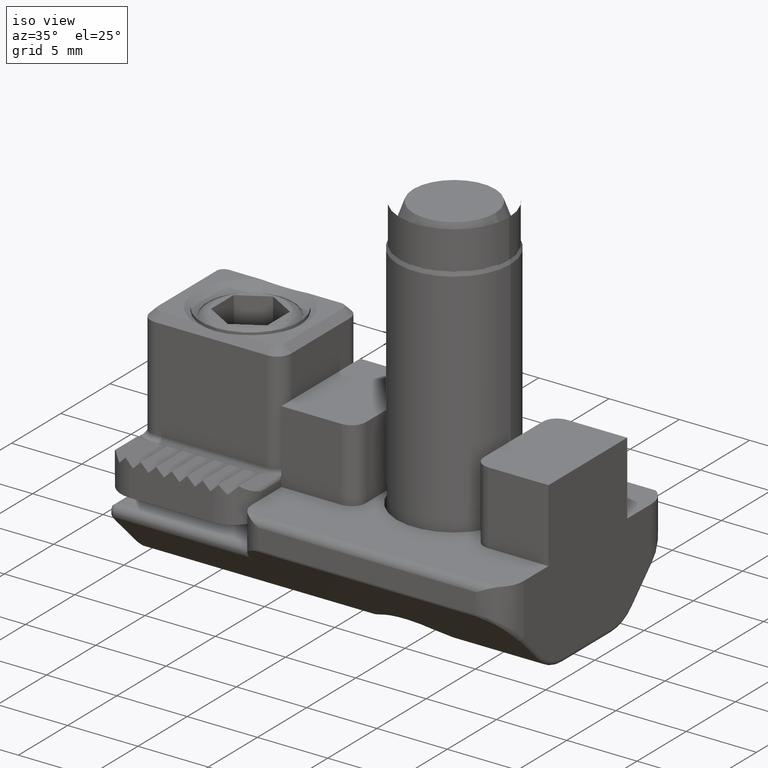
[diagram: clean part render]
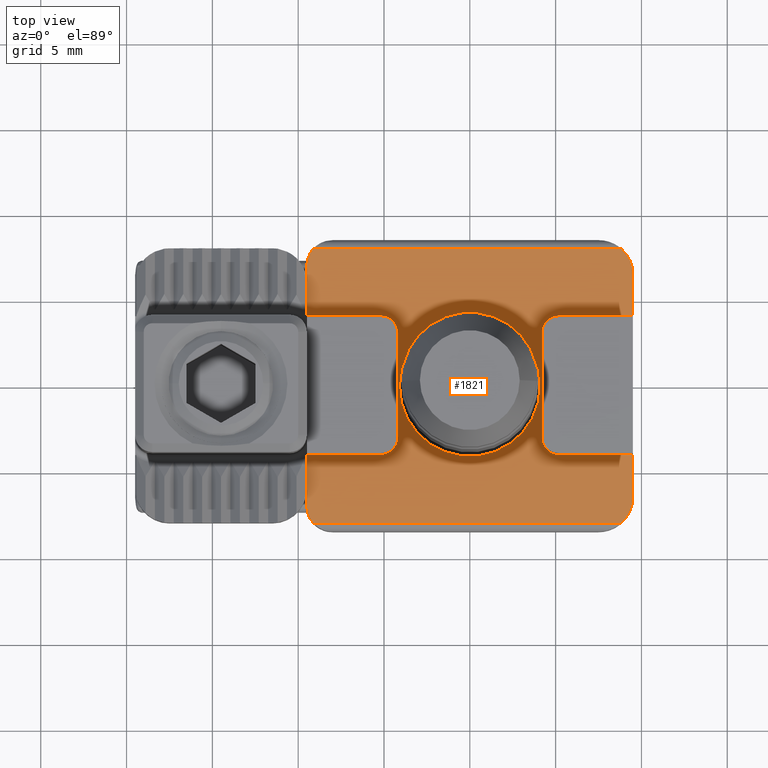
[diagram: tour spotlight — one face highlighted and labeled with its STEP entity id]
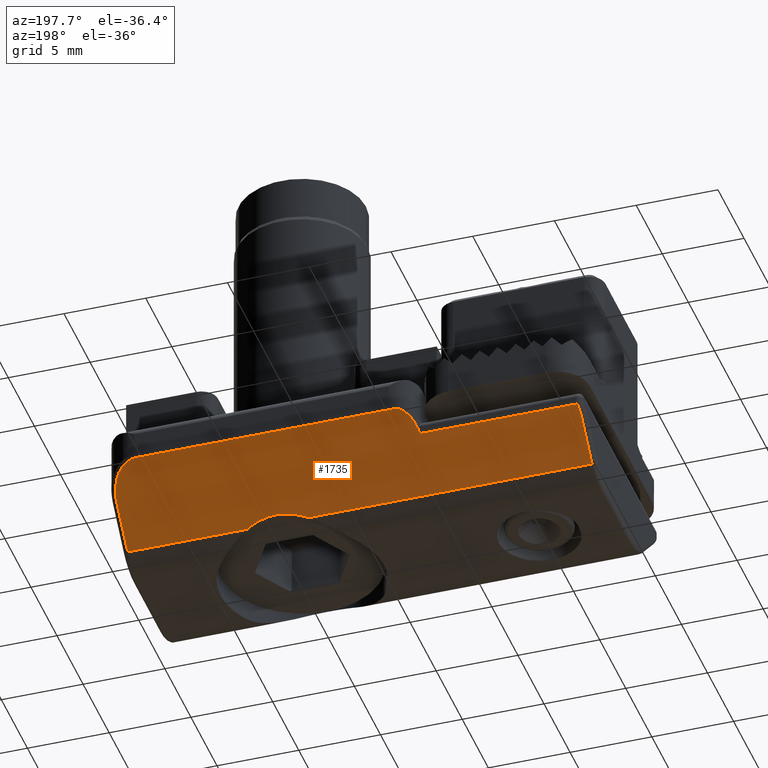
[diagram: tour spotlight — one face highlighted and labeled with its STEP entity id]
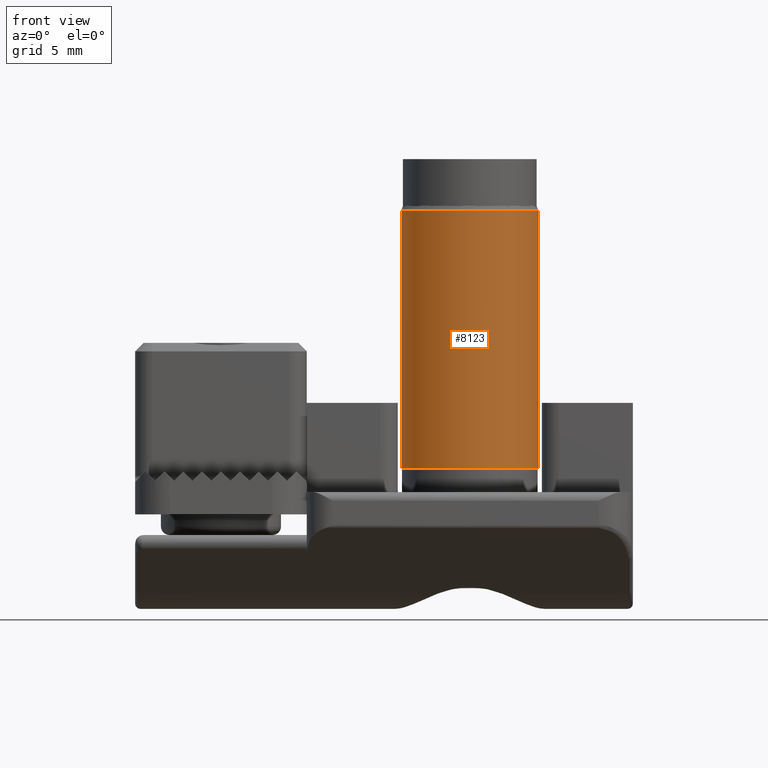
[diagram: tour spotlight — one face highlighted and labeled with its STEP entity id]
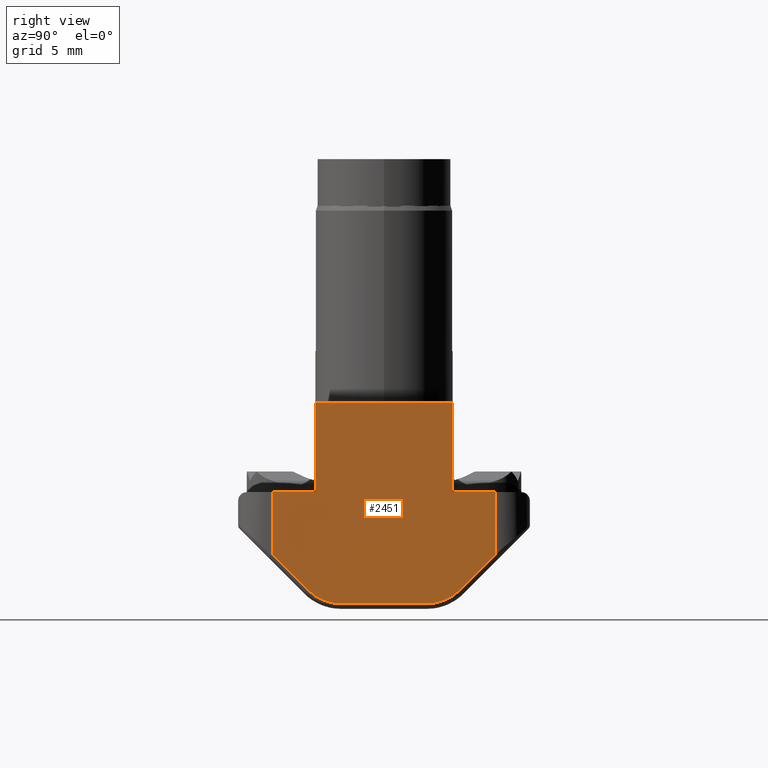
[diagram: tour spotlight — one face highlighted and labeled with its STEP entity id]
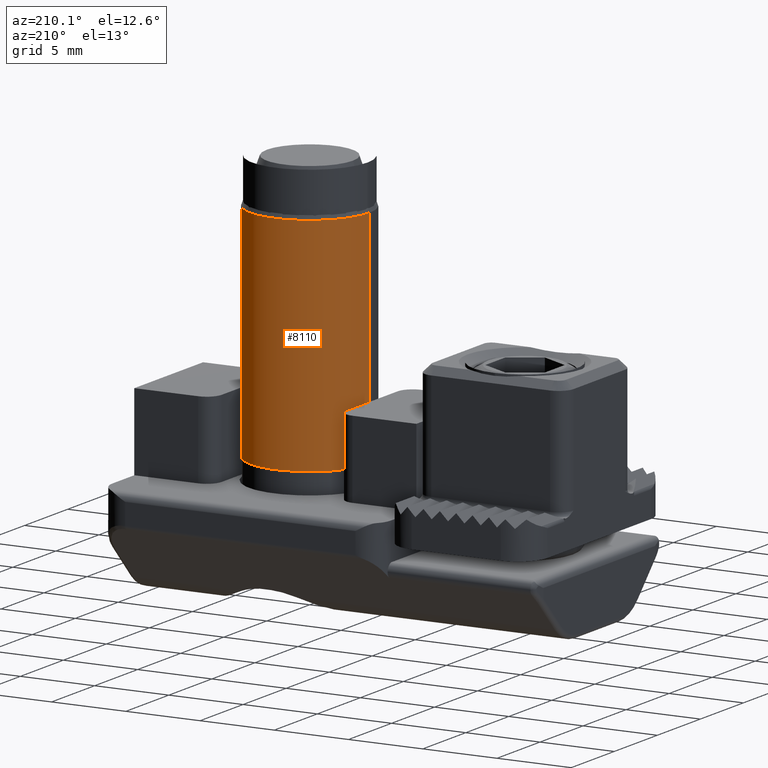
[diagram: tour spotlight — one face highlighted and labeled with its STEP entity id]
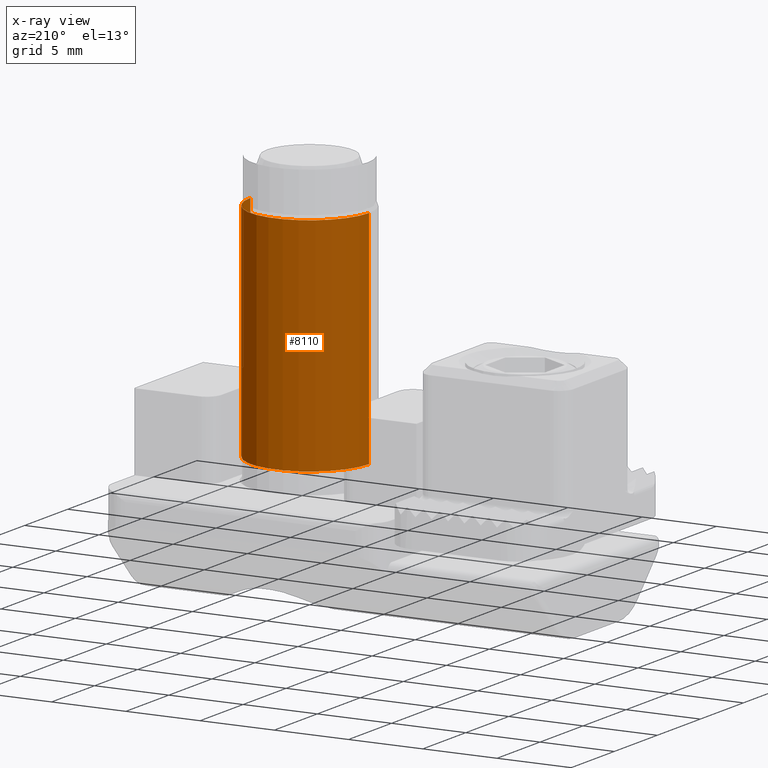
[diagram: x-ray of the same camera — body ghosted, this tour face saturated]
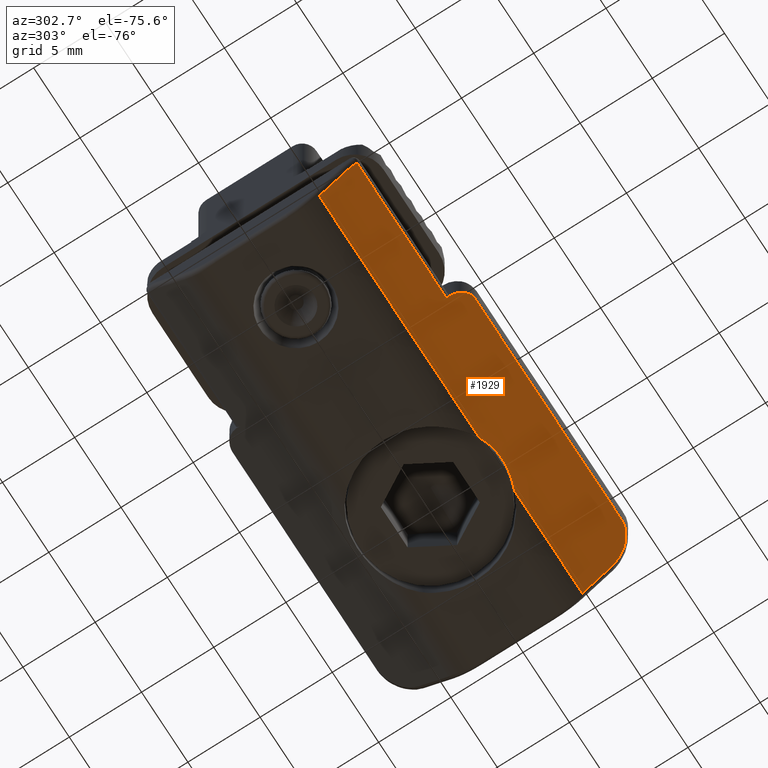
[diagram: tour spotlight — one face highlighted and labeled with its STEP entity id]
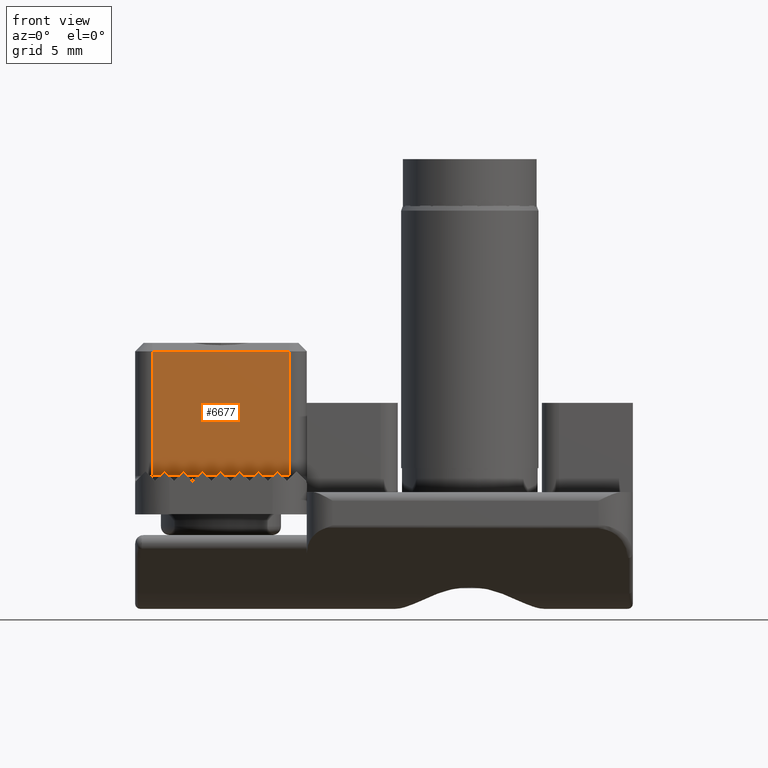
[diagram: tour spotlight — one face highlighted and labeled with its STEP entity id]
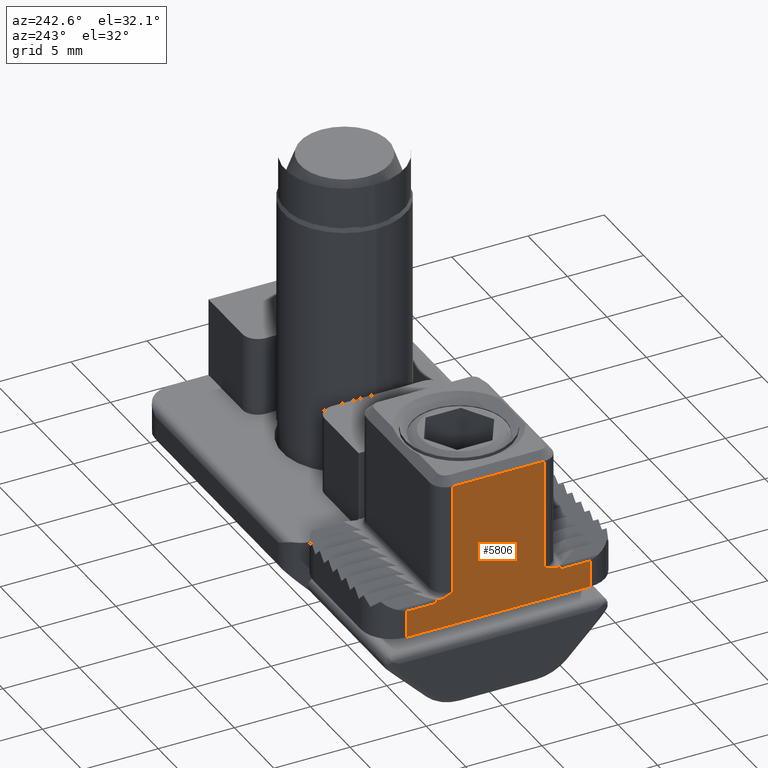
[diagram: tour spotlight — one face highlighted and labeled with its STEP entity id]
A machine part: a face-by-face anatomy tour. The part has 242 B-rep faces; the first image is the clean iso view, then the 8 largest visible faces are spotlighted one at a time (largest first), each with its STEP entity span.

Face 1 — top view, entity #1821. In plain terms, the highlighted planar face has unit normal (0, 0, 1).
Definition (entity closure, byte-faithful):
#170=CARTESIAN_POINT('',(0.E0,0.E0,-5.2E0));
#171=DIRECTION('',(0.E0,0.E0,-1.E0));
#172=DIRECTION('',(1.E0,0.E0,0.E0));
#173=AXIS2_PLACEMENT_3D('',#170,#171,#172);
#178=CARTESIAN_POINT('',(0.E0,0.E0,-5.2E0));
#179=DIRECTION('',(0.E0,0.E0,-1.E0));
#180=DIRECTION('',(-1.E0,0.E0,0.E0));
#181=AXIS2_PLACEMENT_3D('',#178,#179,#180);
#186=CARTESIAN_POINT('',(-8.E0,7.E0,-5.2E0));
#187=DIRECTION('',(0.E0,0.E0,1.E0));
#188=DIRECTION('',(-7.453559924999E-1,6.666666666667E-1,0.E0));
#189=AXIS2_PLACEMENT_3D('',#186,#187,#188);
#194=DIRECTION('',(-1.E0,0.E0,0.E0));
#195=VECTOR('',#194,1.794090964428E1);
#196=CARTESIAN_POINT('',(8.822875655532E0,8.E0,-5.2E0));
#197=LINE('',#196,#195);
#201=CARTESIAN_POINT('',(7.5E0,6.5E0,-5.2E0));
#202=DIRECTION('',(0.E0,0.E0,1.E0));
#203=DIRECTION('',(1.E0,0.E0,0.E0));
#204=AXIS2_PLACEMENT_3D('',#201,#202,#203);
#209=DIRECTION('',(0.E0,-1.E0,0.E0));
#210=VECTOR('',#209,2.5E0);
#211=CARTESIAN_POINT('',(9.5E0,6.5E0,-5.2E0));
#212=LINE('',#211,#210);
#216=DIRECTION('',(0.E0,1.E0,0.E0));
#217=VECTOR('',#216,6.E0);
#218=CARTESIAN_POINT('',(4.2E0,-3.E0,-5.2E0));
#219=LINE('',#218,#217);
#223=DIRECTION('',(1.E0,0.E0,0.E0));
#224=VECTOR('',#223,4.3E0);
#225=CARTESIAN_POINT('',(5.2E0,-4.E0,-5.2E0));
#226=LINE('',#225,#224);
#230=DIRECTION('',(0.E0,-1.E0,0.E0));
#231=VECTOR('',#230,2.5E0);
#232=CARTESIAN_POINT('',(9.5E0,-4.E0,-5.2E0));
#233=LINE('',#232,#231);
#237=CARTESIAN_POINT('',(7.5E0,-6.5E0,-5.2E0));
#238=DIRECTION('',(0.E0,0.E0,1.E0));
#239=DIRECTION('',(6.614378277661E-1,-7.5E-1,0.E0));
#240=AXIS2_PLACEMENT_3D('',#237,#238,#239);
#245=DIRECTION('',(-1.E0,0.E0,0.E0));
#246=VECTOR('',#245,1.794090964428E1);
#247=CARTESIAN_POINT('',(8.822875655532E0,-8.E0,-5.2E0));
#248=LINE('',#247,#246);
#252=CARTESIAN_POINT('',(-8.E0,-7.E0,-5.2E0));
#253=DIRECTION('',(0.E0,0.E0,1.E0));
#254=DIRECTION('',(-1.E0,0.E0,0.E0));
#255=AXIS2_PLACEMENT_3D('',#252,#253,#254);
#260=DIRECTION('',(0.E0,-1.E0,0.E0));
#261=VECTOR('',#260,3.E0);
#262=CARTESIAN_POINT('',(-9.5E0,-4.E0,-5.2E0));
#263=LINE('',#262,#261);
#267=DIRECTION('',(1.E0,0.E0,0.E0));
#268=VECTOR('',#267,4.3E0);
#269=CARTESIAN_POINT('',(-9.5E0,-4.E0,-5.2E0));
#270=LINE('',#269,#268);
#274=DIRECTION('',(0.E0,-1.E0,0.E0));
#275=VECTOR('',#274,6.E0);
#276=CARTESIAN_POINT('',(-4.2E0,3.E0,-5.2E0));
#277=LINE('',#276,#275);
#281=DIRECTION('',(0.E0,-1.E0,0.E0));
#282=VECTOR('',#281,3.E0);
#283=CARTESIAN_POINT('',(-9.5E0,7.E0,-5.2E0));
#284=LINE('',#283,#282);
#761=DIRECTION('',(1.E0,0.E0,0.E0));
#762=VECTOR('',#761,4.3E0);
#763=CARTESIAN_POINT('',(-9.5E0,4.E0,-5.2E0));
#764=LINE('',#763,#762);
#775=DIRECTION('',(1.E0,0.E0,0.E0));
#776=VECTOR('',#775,4.3E0);
#777=CARTESIAN_POINT('',(5.2E0,4.E0,-5.2E0));
#778=LINE('',#777,#776);
#789=CARTESIAN_POINT('',(-5.2E0,3.E0,-5.2E0));
#790=DIRECTION('',(0.E0,0.E0,-1.E0));
#791=DIRECTION('',(0.E0,1.E0,0.E0));
#792=AXIS2_PLACEMENT_3D('',#789,#790,#791);
#811=CARTESIAN_POINT('',(-5.2E0,-3.E0,-5.2E0));
#812=DIRECTION('',(0.E0,0.E0,-1.E0));
#813=DIRECTION('',(1.E0,0.E0,0.E0));
#814=AXIS2_PLACEMENT_3D('',#811,#812,#813);
#935=CARTESIAN_POINT('',(5.2E0,3.E0,-5.2E0));
#936=DIRECTION('',(0.E0,0.E0,-1.E0));
#937=DIRECTION('',(-1.E0,0.E0,0.E0));
#938=AXIS2_PLACEMENT_3D('',#935,#936,#937);
#957=CARTESIAN_POINT('',(5.2E0,-3.E0,-5.2E0));
#958=DIRECTION('',(0.E0,0.E0,-1.E0));
#959=DIRECTION('',(0.E0,-1.E0,0.E0));
#960=AXIS2_PLACEMENT_3D('',#957,#958,#959);
#1482=CARTESIAN_POINT('',(9.5E0,-4.E0,-5.2E0));
#1483=VERTEX_POINT('',#1482);
#1484=CARTESIAN_POINT('',(-9.5E0,-4.E0,-5.2E0));
#1485=VERTEX_POINT('',#1484);
#1486=CARTESIAN_POINT('',(9.5E0,4.E0,-5.2E0));
#1487=VERTEX_POINT('',#1486);
#1488=CARTESIAN_POINT('',(-9.5E0,4.E0,-5.2E0));
#1489=VERTEX_POINT('',#1488);
#1498=CARTESIAN_POINT('',(4.1E0,0.E0,-5.2E0));
#1499=CARTESIAN_POINT('',(-4.1E0,0.E0,-5.2E0));
#1500=VERTEX_POINT('',#1498);
#1501=VERTEX_POINT('',#1499);
#1528=CARTESIAN_POINT('',(-4.2E0,-3.E0,-5.2E0));
#1530=VERTEX_POINT('',#1528);
#1532=CARTESIAN_POINT('',(-5.2E0,-4.E0,-5.2E0));
#1534=VERTEX_POINT('',#1532);
#1537=CARTESIAN_POINT('',(-4.2E0,3.E0,-5.2E0));
#1539=VERTEX_POINT('',#1537);
#1542=CARTESIAN_POINT('',(-5.2E0,4.E0,-5.2E0));
#1543=VERTEX_POINT('',#1542);
#1544=CARTESIAN_POINT('',(4.2E0,3.E0,-5.2E0));
#1546=VERTEX_POINT('',#1544);
#1548=CARTESIAN_POINT('',(5.2E0,4.E0,-5.2E0));
#1550=VERTEX_POINT('',#1548);
#1553=CARTESIAN_POINT('',(4.2E0,-3.E0,-5.2E0));
#1555=VERTEX_POINT('',#1553);
#1558=CARTESIAN_POINT('',(5.2E0,-4.E0,-5.2E0));
#1559=VERTEX_POINT('',#1558);
#1560=CARTESIAN_POINT('',(9.5E0,6.5E0,-5.2E0));
#1561=CARTESIAN_POINT('',(8.822875655532E0,8.E0,-5.2E0));
#1562=VERTEX_POINT('',#1560);
#1563=VERTEX_POINT('',#1561);
#1564=CARTESIAN_POINT('',(8.822875655532E0,-8.E0,-5.2E0));
#1565=CARTESIAN_POINT('',(9.5E0,-6.5E0,-5.2E0));
#1566=VERTEX_POINT('',#1564);
#1567=VERTEX_POINT('',#1565);
#1638=CARTESIAN_POINT('',(-9.118033988750E0,8.E0,-5.2E0));
#1639=CARTESIAN_POINT('',(-9.5E0,7.E0,-5.2E0));
#1640=VERTEX_POINT('',#1638);
#1641=VERTEX_POINT('',#1639);
#1642=CARTESIAN_POINT('',(-9.5E0,-7.E0,-5.2E0));
#1643=CARTESIAN_POINT('',(-9.118033988750E0,-8.E0,-5.2E0));
#1644=VERTEX_POINT('',#1642);
#1645=VERTEX_POINT('',#1643);
#1769=CARTESIAN_POINT('',(-1.95E1,-4.E0,-5.2E0));
#1770=DIRECTION('',(0.E0,0.E0,1.E0));
#1771=DIRECTION('',(0.E0,-1.E0,0.E0));
#1772=AXIS2_PLACEMENT_3D('',#1769,#1770,#1771);
#1773=PLANE('',#1772);
#1774=ORIENTED_EDGE('',*,*,#1754,.F.);
#1776=ORIENTED_EDGE('',*,*,#1775,.F.);
#1778=ORIENTED_EDGE('',*,*,#1777,.F.);
#1780=ORIENTED_EDGE('',*,*,#1779,.T.);
#1782=ORIENTED_EDGE('',*,*,#1781,.F.);
#1784=ORIENTED_EDGE('',*,*,#1783,.F.);
#1786=ORIENTED_EDGE('',*,*,#1785,.F.);
#1788=ORIENTED_EDGE('',*,*,#1787,.F.);
#1790=ORIENTED_EDGE('',*,*,#1789,.T.);
#1792=ORIENTED_EDGE('',*,*,#1791,.T.);
#1794=ORIENTED_EDGE('',*,*,#1793,.F.);
#1796=ORIENTED_EDGE('',*,*,#1795,.T.);
#1798=ORIENTED_EDGE('',*,*,#1797,.F.);
#1800=ORIENTED_EDGE('',*,*,#1799,.F.);
#1802=ORIENTED_EDGE('',*,*,#1801,.T.);
#1804=ORIENTED_EDGE('',*,*,#1803,.F.);
#1806=ORIENTED_EDGE('',*,*,#1805,.F.);
#1808=ORIENTED_EDGE('',*,*,#1807,.F.);
#1810=ORIENTED_EDGE('',*,*,#1809,.F.);
#1812=ORIENTED_EDGE('',*,*,#1811,.F.);
#1813=EDGE_LOOP('',(#1774,#1776,#1778,#1780,#1782,#1784,#1786,#1788,#1790,#1792,
#1794,#1796,#1798,#1800,#1802,#1804,#1806,#1808,#1810,#1812));
#1814=FACE_OUTER_BOUND('',#1813,.F.);
#1816=ORIENTED_EDGE('',*,*,#1815,.F.);
#1818=ORIENTED_EDGE('',*,*,#1817,.F.);
#1819=EDGE_LOOP('',(#1816,#1818));
#1820=FACE_BOUND('',#1819,.F.);
#1821=ADVANCED_FACE('',(#1814,#1820),#1773,.T.);
#174=CIRCLE('',#173,4.1E0);
#182=CIRCLE('',#181,4.1E0);
#190=CIRCLE('',#189,1.5E0);
#205=CIRCLE('',#204,2.E0);
#241=CIRCLE('',#240,2.E0);
#256=CIRCLE('',#255,1.5E0);
#793=CIRCLE('',#792,1.E0);
#815=CIRCLE('',#814,1.E0);
#939=CIRCLE('',#938,1.E0);
#961=CIRCLE('',#960,1.E0);
#1754=EDGE_CURVE('',#1640,#1641,#190,.T.);
#1775=EDGE_CURVE('',#1563,#1640,#197,.T.);
#1777=EDGE_CURVE('',#1562,#1563,#205,.T.);
#1779=EDGE_CURVE('',#1562,#1487,#212,.T.);
#1781=EDGE_CURVE('',#1550,#1487,#778,.T.);
#1783=EDGE_CURVE('',#1546,#1550,#939,.T.);
#1785=EDGE_CURVE('',#1555,#1546,#219,.T.);
#1787=EDGE_CURVE('',#1559,#1555,#961,.T.);
#1789=EDGE_CURVE('',#1559,#1483,#226,.T.);
#1791=EDGE_CURVE('',#1483,#1567,#233,.T.);
#1793=EDGE_CURVE('',#1566,#1567,#241,.T.);
#1795=EDGE_CURVE('',#1566,#1645,#248,.T.);
#1797=EDGE_CURVE('',#1644,#1645,#256,.T.);
#1799=EDGE_CURVE('',#1485,#1644,#263,.T.);
#1801=EDGE_CURVE('',#1485,#1534,#270,.T.);
#1803=EDGE_CURVE('',#1530,#1534,#815,.T.);
#1805=EDGE_CURVE('',#1539,#1530,#277,.T.);
#1807=EDGE_CURVE('',#1543,#1539,#793,.T.);
#1809=EDGE_CURVE('',#1489,#1543,#764,.T.);
#1811=EDGE_CURVE('',#1641,#1489,#284,.T.);
#1815=EDGE_CURVE('',#1500,#1501,#174,.T.);
#1817=EDGE_CURVE('',#1501,#1500,#182,.T.);

Face 2 — auxiliary view, entity #1735. In plain terms, the highlighted planar face has unit normal (0, 0.7071, -0.7071).
Definition (entity closure, byte-faithful):
#71=DIRECTION('',(0.E0,-7.071067811865E-1,-7.071067811865E-1));
#72=VECTOR('',#71,2.778174593052E-1);
#73=CARTESIAN_POINT('',(-9.5E0,7.196446609407E0,-8.553553390593E0));
#74=LINE('',#73,#72);
#78=DIRECTION('',(1.E0,1.811735936381E-7,-1.811781957785E-7));
#79=VECTOR('',#78,9.629551899268E0);
#80=CARTESIAN_POINT('',(-1.912955189927E1,7.196444864786E0,-8.553551645928E0));
#81=LINE('',#80,#79);
#85=CARTESIAN_POINT('',(-1.92E1,6.712132034356E0,-9.037867965644E0));
#86=CARTESIAN_POINT('',(-1.920000074395E1,6.795061336289E0,-8.954938663711E0));
#87=CARTESIAN_POINT('',(-1.918792567127E1,6.958711115339E0,-8.791290629304E0));
#88=CARTESIAN_POINT('',(-1.915289113032E1,7.117934628538E0,-8.632061882176E0));
#89=CARTESIAN_POINT('',(-1.912955189927E1,7.196444864786E0,-8.553551645928E0));
#94=DIRECTION('',(0.E0,7.071067811865E-1,7.071067811866E-1));
#95=VECTOR('',#94,2.946446609359E0);
#96=CARTESIAN_POINT('',(-1.92E1,4.628679656474E0,-1.112132034353E1));
#97=LINE('',#96,#95);
#101=DIRECTION('',(1.E0,-1.965788090853E-12,-1.965890716177E-12));
#102=VECTOR('',#101,1.730914711359E1);
#103=CARTESIAN_POINT('',(-1.92E1,4.628679656474E0,-1.112132034353E1));
#104=LINE('',#103,#102);
#108=CARTESIAN_POINT('',(-1.890852886413E0,4.628679656440E0,-1.112132034356E1));
#109=CARTESIAN_POINT('',(-1.260568558480E0,4.886155876268E0,-1.086384412373E1));
#110=CARTESIAN_POINT('',(8.919869687318E-8,5.113844145544E0,-1.063615585446E1));
#111=CARTESIAN_POINT('',(1.260568723903E0,4.886155832644E0,-1.086384416736E1));
#112=CARTESIAN_POINT('',(1.890853037162E0,4.628679594858E0,-1.112132040514E1));
#117=DIRECTION('',(1.E0,7.636365123829E-9,7.618012559952E-9));
#118=VECTOR('',#117,7.309146973910E0);
#119=CARTESIAN_POINT('',(1.890853026090E0,4.628679600658E0,-1.112132039921E1));
#120=LINE('',#119,#118);
#124=DIRECTION('',(0.E0,-7.071067811865E-1,-7.071067811866E-1));
#125=VECTOR('',#124,2.946446609360E0);
#126=CARTESIAN_POINT('',(9.2E0,6.712132034356E0,-9.037867965644E0));
#127=LINE('',#126,#125);
#131=CARTESIAN_POINT('',(7.5E0,8.412132034097E0,-7.337867965385E0));
#132=CARTESIAN_POINT('',(7.591611158539E0,8.412109254161E0,-7.337890745322E0));
#133=CARTESIAN_POINT('',(7.775509138872E0,8.397609251905E0,-7.352390748335E0));
#134=CARTESIAN_POINT('',(8.057548696581E0,8.327115088315E0,-7.422884911621E0));
#135=CARTESIAN_POINT('',(8.333387832280E0,8.204680432255E0,-7.545319567762E0));
#136=CARTESIAN_POINT('',(8.600366848986E0,8.022216935236E0,-7.727783064760E0));
#137=CARTESIAN_POINT('',(8.840123038209E0,7.777316103971E0,-7.972683896031E0));
#138=CARTESIAN_POINT('',(9.035683492043E0,7.473399406999E0,-8.276600593001E0));
#139=CARTESIAN_POINT('',(9.169387522971E0,7.104808752595E0,-8.645191247405E0));
#140=CARTESIAN_POINT('',(9.200002960671E0,6.846788301077E0,-8.903211698923E0));
#141=CARTESIAN_POINT('',(9.2E0,6.712132034356E0,-9.037867965644E0));
#146=DIRECTION('',(1.E0,-1.617170312827E-11,1.616887309409E-11));
#147=VECTOR('',#146,1.600584890782E1);
#148=CARTESIAN_POINT('',(-8.505848907823E0,8.412132034356E0,-7.337867965644E0));
#149=LINE('',#148,#147);
#153=CARTESIAN_POINT('',(-8.505848907823E0,8.412132034356E0,-7.337867965644E0));
#154=CARTESIAN_POINT('',(-8.699713752559E0,8.342686460154E0,-7.407313539846E0));
#155=CARTESIAN_POINT('',(-8.986851407908E0,8.160093170149E0,-7.589906829851E0));
#156=CARTESIAN_POINT('',(-9.372365870277E0,7.712899566484E0,-8.037100433516E0));
#157=CARTESIAN_POINT('',(-9.5E0,7.307340051335E0,-8.442659948665E0));
#158=CARTESIAN_POINT('',(-9.5E0,7.E0,-8.75E0));
#718=CARTESIAN_POINT('',(-1.912955189927E1,7.196444864786E0,-8.553551645928E0));
#1162=CARTESIAN_POINT('',(-1.890852886413E0,4.628679656440E0,
-1.112132034356E1));
#1193=CARTESIAN_POINT('',(1.890853026090E0,4.628679600658E0,-1.112132039921E1));
#1514=VERTEX_POINT('',#1193);
#1515=VERTEX_POINT('',#1162);
#1584=VERTEX_POINT('',#718);
#1586=VERTEX_POINT('',#85);
#1588=CARTESIAN_POINT('',(-1.92E1,4.628679656474E0,-1.112132034353E1));
#1589=VERTEX_POINT('',#1588);
#1628=CARTESIAN_POINT('',(9.2E0,4.628679656440E0,-1.112132034356E1));
#1629=VERTEX_POINT('',#1628);
#1632=CARTESIAN_POINT('',(9.2E0,6.712132034356E0,-9.037867965644E0));
#1633=VERTEX_POINT('',#1632);
#1636=VERTEX_POINT('',#131);
#1655=CARTESIAN_POINT('',(-9.5E0,7.196446609407E0,-8.553553390593E0));
#1656=CARTESIAN_POINT('',(-9.5E0,7.E0,-8.75E0));
#1657=VERTEX_POINT('',#1655);
#1658=VERTEX_POINT('',#1656);
#1659=VERTEX_POINT('',#153);
#1707=CARTESIAN_POINT('',(-1.95E1,4.628679656440E0,-1.112132034356E1));
#1708=DIRECTION('',(0.E0,7.071067811865E-1,-7.071067811865E-1));
#1709=DIRECTION('',(0.E0,7.071067811865E-1,7.071067811865E-1));
#1710=AXIS2_PLACEMENT_3D('',#1707,#1708,#1709);
#1711=PLANE('',#1710);
#1713=ORIENTED_EDGE('',*,*,#1712,.F.);
#1715=ORIENTED_EDGE('',*,*,#1714,.F.);
#1717=ORIENTED_EDGE('',*,*,#1716,.F.);
#1718=ORIENTED_EDGE('',*,*,#1697,.F.);
#1720=ORIENTED_EDGE('',*,*,#1719,.T.);
#1722=ORIENTED_EDGE('',*,*,#1721,.T.);
#1724=ORIENTED_EDGE('',*,*,#1723,.T.);
#1726=ORIENTED_EDGE('',*,*,#1725,.F.);
#1728=ORIENTED_EDGE('',*,*,#1727,.F.);
#1730=ORIENTED_EDGE('',*,*,#1729,.F.);
#1732=ORIENTED_EDGE('',*,*,#1731,.T.);
#1733=EDGE_LOOP('',(#1713,#1715,#1717,#1718,#1720,#1722,#1724,#1726,#1728,#1730,
#1732));
#1734=FACE_OUTER_BOUND('',#1733,.F.);
#1735=ADVANCED_FACE('',(#1734),#1711,.T.);
#90=B_SPLINE_CURVE_WITH_KNOTS('',3,(#85,#86,#87,#88,#89),.UNSPECIFIED.,.F.,.F.,(
4,1,4),(0.E0,5.E-1,1.E0),.UNSPECIFIED.);
#113=B_SPLINE_CURVE_WITH_KNOTS('',3,(#108,#109,#110,#111,#112),.UNSPECIFIED.,
.F.,.F.,(4,1,4),(0.E0,5.E-1,1.E0),.UNSPECIFIED.);
#142=B_SPLINE_CURVE_WITH_KNOTS('',3,(#131,#132,#133,#134,#135,#136,#137,#138,
#139,#140,#141),.UNSPECIFIED.,.F.,.F.,(4,1,1,1,1,1,1,1,4),(0.E0,1.25E-1,2.5E-1,
3.75E-1,5.E-1,6.25E-1,7.5E-1,8.75E-1,1.E0),.UNSPECIFIED.);
#159=B_SPLINE_CURVE_WITH_KNOTS('',3,(#153,#154,#155,#156,#157,#158),
.UNSPECIFIED.,.F.,.F.,(4,1,1,4),(0.E0,2.5E-1,5.E-1,1.E0),.UNSPECIFIED.);
#1697=EDGE_CURVE('',#1589,#1586,#97,.T.);
#1712=EDGE_CURVE('',#1657,#1658,#74,.T.);
#1714=EDGE_CURVE('',#1584,#1657,#81,.T.);
#1716=EDGE_CURVE('',#1586,#1584,#90,.T.);
#1719=EDGE_CURVE('',#1589,#1515,#104,.T.);
#1721=EDGE_CURVE('',#1515,#1514,#113,.T.);
#1723=EDGE_CURVE('',#1514,#1629,#120,.T.);
#1725=EDGE_CURVE('',#1633,#1629,#127,.T.);
#1727=EDGE_CURVE('',#1636,#1633,#142,.T.);
#1729=EDGE_CURVE('',#1659,#1636,#149,.T.);
#1731=EDGE_CURVE('',#1659,#1658,#159,.T.);

Face 3 — front view, entity #8123. In plain terms, the highlighted cylindrical surface (partial cylindrical patch) has radius 4 mm, axis along (0, 0, 1).
Definition (entity closure, byte-faithful):
#7682=DIRECTION('',(0.E0,0.E0,-1.E0));
#7683=VECTOR('',#7682,1.5E1);
#7684=CARTESIAN_POINT('',(4.E0,0.E0,-3.E0));
#7685=LINE('',#7684,#7683);
#7689=DIRECTION('',(0.E0,0.E0,-1.E0));
#7690=VECTOR('',#7689,1.5E1);
#7691=CARTESIAN_POINT('',(-4.E0,0.E0,-3.E0));
#7692=LINE('',#7691,#7690);
#7696=CARTESIAN_POINT('',(0.E0,0.E0,-3.E0));
#7697=DIRECTION('',(0.E0,0.E0,-1.E0));
#7698=DIRECTION('',(1.E0,0.E0,0.E0));
#7699=AXIS2_PLACEMENT_3D('',#7696,#7697,#7698);
#7712=CARTESIAN_POINT('',(0.E0,0.E0,-1.8E1));
#7713=DIRECTION('',(0.E0,0.E0,-1.E0));
#7714=DIRECTION('',(1.E0,0.E0,0.E0));
#7715=AXIS2_PLACEMENT_3D('',#7712,#7713,#7714);
#8009=CARTESIAN_POINT('',(4.E0,0.E0,-3.E0));
#8011=VERTEX_POINT('',#8009);
#8012=CARTESIAN_POINT('',(4.E0,0.E0,-1.8E1));
#8013=VERTEX_POINT('',#8012);
#8019=CARTESIAN_POINT('',(-4.E0,0.E0,-3.E0));
#8021=VERTEX_POINT('',#8019);
#8022=CARTESIAN_POINT('',(-4.E0,0.E0,-1.8E1));
#8023=VERTEX_POINT('',#8022);
#8111=CARTESIAN_POINT('',(0.E0,0.E0,-2.625E1));
#8112=DIRECTION('',(0.E0,0.E0,1.E0));
#8113=DIRECTION('',(-1.E0,0.E0,0.E0));
#8114=AXIS2_PLACEMENT_3D('',#8111,#8112,#8113);
#8115=CYLINDRICAL_SURFACE('',#8114,4.E0);
#8116=ORIENTED_EDGE('',*,*,#8101,.T.);
#8118=ORIENTED_EDGE('',*,*,#8117,.T.);
#8119=ORIENTED_EDGE('',*,*,#8104,.F.);
#8120=ORIENTED_EDGE('',*,*,#8075,.F.);
#8121=EDGE_LOOP('',(#8116,#8118,#8119,#8120));
#8122=FACE_OUTER_BOUND('',#8121,.F.);
#8123=ADVANCED_FACE('',(#8122),#8115,.T.);
#7700=CIRCLE('',#7699,4.E0);
#7716=CIRCLE('',#7715,4.E0);
#8075=EDGE_CURVE('',#8011,#8021,#7700,.T.);
#8101=EDGE_CURVE('',#8011,#8013,#7685,.T.);
#8104=EDGE_CURVE('',#8021,#8023,#7692,.T.);
#8117=EDGE_CURVE('',#8013,#8023,#7716,.T.);

Face 4 — right view, entity #2451. In plain terms, the highlighted planar face has unit normal (-1, 0, 0).
Definition (entity closure, byte-faithful):
#209=DIRECTION('',(0.E0,-1.E0,0.E0));
#210=VECTOR('',#209,2.5E0);
#211=CARTESIAN_POINT('',(9.5E0,6.5E0,-5.2E0));
#212=LINE('',#211,#210);
#230=DIRECTION('',(0.E0,-1.E0,0.E0));
#231=VECTOR('',#230,2.5E0);
#232=CARTESIAN_POINT('',(9.5E0,-4.E0,-5.2E0));
#233=LINE('',#232,#231);
#782=DIRECTION('',(0.E0,0.E0,1.E0));
#783=VECTOR('',#782,5.2E0);
#784=CARTESIAN_POINT('',(9.5E0,4.E0,-5.2E0));
#785=LINE('',#784,#783);
#854=DIRECTION('',(0.E0,0.E0,-1.E0));
#855=VECTOR('',#854,5.2E0);
#856=CARTESIAN_POINT('',(9.5E0,-4.E0,0.E0));
#857=LINE('',#856,#855);
#913=DIRECTION('',(0.E0,-1.E0,0.E0));
#914=VECTOR('',#913,8.E0);
#915=CARTESIAN_POINT('',(9.5E0,4.E0,0.E0));
#916=LINE('',#915,#914);
#965=DIRECTION('',(2.592069532691E-7,-7.071067811865E-1,7.071067811865E-1));
#966=VECTOR('',#965,2.946446609323E0);
#967=CARTESIAN_POINT('',(9.5E0,-4.416547622084E0,-1.090918830920E1));
#968=LINE('',#967,#966);
#972=DIRECTION('',(-2.106439804315E-7,-1.639060846884E-11,1.E0));
#973=VECTOR('',#972,3.625735931348E0);
#974=CARTESIAN_POINT('',(9.500000763739E0,-6.499999999941E0,-8.825735931347E0));
#975=LINE('',#974,#973);
#979=DIRECTION('',(-8.185485449228E-8,2.600548490624E-12,1.E0));
#980=VECTOR('',#979,3.625735931298E0);
#981=CARTESIAN_POINT('',(9.500000296784E0,6.499999999991E0,-8.825735931297E0));
#982=LINE('',#981,#980);
#986=DIRECTION('',(-1.007261038220E-7,-7.071067811865E-1,-7.071067811865E-1));
#987=VECTOR('',#986,2.946446609393E0);
#988=CARTESIAN_POINT('',(9.500000296784E0,6.499999999991E0,-8.825735931297E0));
#989=LINE('',#988,#987);
#993=CARTESIAN_POINT('',(9.5E0,2.507359312881E0,-9.E0));
#994=DIRECTION('',(-1.E0,0.E0,0.E0));
#995=DIRECTION('',(0.E0,7.071067811865E-1,-7.071067811865E-1));
#996=AXIS2_PLACEMENT_3D('',#993,#994,#995);
#1001=DIRECTION('',(0.E0,-1.E0,0.E0));
#1002=VECTOR('',#1001,5.014718625761E0);
#1003=CARTESIAN_POINT('',(9.5E0,2.507359312881E0,-1.17E1));
#1004=LINE('',#1003,#1002);
#1008=CARTESIAN_POINT('',(9.5E0,-2.507359312881E0,-9.E0));
#1009=DIRECTION('',(-1.E0,0.E0,0.E0));
#1010=DIRECTION('',(0.E0,0.E0,-1.E0));
#1011=AXIS2_PLACEMENT_3D('',#1008,#1009,#1010);
#1080=CARTESIAN_POINT('',(9.500000763739E0,-6.499999999941E0,
-8.825735931347E0));
#1474=CARTESIAN_POINT('',(9.5E0,4.E0,0.E0));
#1475=CARTESIAN_POINT('',(9.5E0,-4.E0,0.E0));
#1476=VERTEX_POINT('',#1474);
#1477=VERTEX_POINT('',#1475);
#1482=CARTESIAN_POINT('',(9.5E0,-4.E0,-5.2E0));
#1483=VERTEX_POINT('',#1482);
#1486=CARTESIAN_POINT('',(9.5E0,4.E0,-5.2E0));
#1487=VERTEX_POINT('',#1486);
#1560=CARTESIAN_POINT('',(9.5E0,6.5E0,-5.2E0));
#1562=VERTEX_POINT('',#1560);
#1565=CARTESIAN_POINT('',(9.5E0,-6.5E0,-5.2E0));
#1567=VERTEX_POINT('',#1565);
#1614=VERTEX_POINT('',#1080);
#1618=CARTESIAN_POINT('',(9.5E0,-4.416547622084E0,-1.090918830920E1));
#1619=VERTEX_POINT('',#1618);
#1622=CARTESIAN_POINT('',(9.5E0,-2.507359312881E0,-1.170000015121E1));
#1623=VERTEX_POINT('',#1622);
#1626=CARTESIAN_POINT('',(9.5E0,2.507359312881E0,-1.17E1));
#1627=VERTEX_POINT('',#1626);
#1630=CARTESIAN_POINT('',(9.5E0,4.416547729009E0,-1.090918841613E1));
#1631=VERTEX_POINT('',#1630);
#1634=CARTESIAN_POINT('',(9.500000296784E0,6.499999999991E0,-8.825735931297E0));
#1635=VERTEX_POINT('',#1634);
#2425=CARTESIAN_POINT('',(9.5E0,1.02E1,-7.7E0));
#2426=DIRECTION('',(-1.E0,0.E0,0.E0));
#2427=DIRECTION('',(0.E0,0.E0,1.E0));
#2428=AXIS2_PLACEMENT_3D('',#2425,#2426,#2427);
#2429=PLANE('',#2428);
#2431=ORIENTED_EDGE('',*,*,#2430,.T.);
#2433=ORIENTED_EDGE('',*,*,#2432,.T.);
#2434=ORIENTED_EDGE('',*,*,#1791,.F.);
#2435=ORIENTED_EDGE('',*,*,#2349,.F.);
#2436=ORIENTED_EDGE('',*,*,#2377,.F.);
#2437=ORIENTED_EDGE('',*,*,#2278,.F.);
#2438=ORIENTED_EDGE('',*,*,#1779,.F.);
#2440=ORIENTED_EDGE('',*,*,#2439,.F.);
#2442=ORIENTED_EDGE('',*,*,#2441,.T.);
#2444=ORIENTED_EDGE('',*,*,#2443,.T.);
#2446=ORIENTED_EDGE('',*,*,#2445,.T.);
#2448=ORIENTED_EDGE('',*,*,#2447,.T.);
#2449=EDGE_LOOP('',(#2431,#2433,#2434,#2435,#2436,#2437,#2438,#2440,#2442,#2444,
#2446,#2448));
#2450=FACE_OUTER_BOUND('',#2449,.F.);
#2451=ADVANCED_FACE('',(#2450),#2429,.F.);
#997=CIRCLE('',#996,2.700000151214E0);
#1012=CIRCLE('',#1011,2.700000151214E0);
#1779=EDGE_CURVE('',#1562,#1487,#212,.T.);
#1791=EDGE_CURVE('',#1483,#1567,#233,.T.);
#2278=EDGE_CURVE('',#1487,#1476,#785,.T.);
#2349=EDGE_CURVE('',#1477,#1483,#857,.T.);
#2377=EDGE_CURVE('',#1476,#1477,#916,.T.);
#2430=EDGE_CURVE('',#1619,#1614,#968,.T.);
#2432=EDGE_CURVE('',#1614,#1567,#975,.T.);
#2439=EDGE_CURVE('',#1635,#1562,#982,.T.);
#2441=EDGE_CURVE('',#1635,#1631,#989,.T.);
#2443=EDGE_CURVE('',#1631,#1627,#997,.T.);
#2445=EDGE_CURVE('',#1627,#1623,#1004,.T.);
#2447=EDGE_CURVE('',#1623,#1619,#1012,.T.);

Face 5 — auxiliary view, entity #8110. An x-ray twin of the same camera follows (body ghosted, this face saturated) — the face is partly hidden behind the body. In plain terms, the highlighted cylindrical surface (partial cylindrical patch) has radius 4 mm, axis along (0, 0, 1).
Definition (entity closure, byte-faithful):
#7674=CARTESIAN_POINT('',(0.E0,0.E0,-3.E0));
#7675=DIRECTION('',(0.E0,0.E0,1.E0));
#7676=DIRECTION('',(1.E0,0.E0,0.E0));
#7677=AXIS2_PLACEMENT_3D('',#7674,#7675,#7676);
#7682=DIRECTION('',(0.E0,0.E0,-1.E0));
#7683=VECTOR('',#7682,1.5E1);
#7684=CARTESIAN_POINT('',(4.E0,0.E0,-3.E0));
#7685=LINE('',#7684,#7683);
#7689=DIRECTION('',(0.E0,0.E0,-1.E0));
#7690=VECTOR('',#7689,1.5E1);
#7691=CARTESIAN_POINT('',(-4.E0,0.E0,-3.E0));
#7692=LINE('',#7691,#7690);
#7704=CARTESIAN_POINT('',(0.E0,0.E0,-1.8E1));
#7705=DIRECTION('',(0.E0,0.E0,1.E0));
#7706=DIRECTION('',(1.E0,0.E0,0.E0));
#7707=AXIS2_PLACEMENT_3D('',#7704,#7705,#7706);
#8009=CARTESIAN_POINT('',(4.E0,0.E0,-3.E0));
#8011=VERTEX_POINT('',#8009);
#8012=CARTESIAN_POINT('',(4.E0,0.E0,-1.8E1));
#8013=VERTEX_POINT('',#8012);
#8019=CARTESIAN_POINT('',(-4.E0,0.E0,-3.E0));
#8021=VERTEX_POINT('',#8019);
#8022=CARTESIAN_POINT('',(-4.E0,0.E0,-1.8E1));
#8023=VERTEX_POINT('',#8022);
#8096=CARTESIAN_POINT('',(0.E0,0.E0,-2.625E1));
#8097=DIRECTION('',(0.E0,0.E0,1.E0));
#8098=DIRECTION('',(-1.E0,0.E0,0.E0));
#8099=AXIS2_PLACEMENT_3D('',#8096,#8097,#8098);
#8100=CYLINDRICAL_SURFACE('',#8099,4.E0);
#8102=ORIENTED_EDGE('',*,*,#8101,.F.);
#8103=ORIENTED_EDGE('',*,*,#8091,.T.);
#8105=ORIENTED_EDGE('',*,*,#8104,.T.);
#8107=ORIENTED_EDGE('',*,*,#8106,.F.);
#8108=EDGE_LOOP('',(#8102,#8103,#8105,#8107));
#8109=FACE_OUTER_BOUND('',#8108,.F.);
#8110=ADVANCED_FACE('',(#8109),#8100,.T.);
#7678=CIRCLE('',#7677,4.E0);
#7708=CIRCLE('',#7707,4.E0);
#8091=EDGE_CURVE('',#8011,#8021,#7678,.T.);
#8101=EDGE_CURVE('',#8011,#8013,#7685,.T.);
#8104=EDGE_CURVE('',#8021,#8023,#7692,.T.);
#8106=EDGE_CURVE('',#8013,#8023,#7708,.T.);

Face 6 — auxiliary view, entity #1929. In plain terms, the highlighted planar face has unit normal (0, -0.7071, -0.7071).
Definition (entity closure, byte-faithful):
#340=DIRECTION('',(0.E0,7.071067811865E-1,-7.071067811866E-1));
#341=VECTOR('',#340,2.778174593052E-1);
#342=CARTESIAN_POINT('',(-9.5E0,-7.196446609407E0,-8.553553390593E0));
#343=LINE('',#342,#341);
#347=CARTESIAN_POINT('',(-9.5E0,-7.E0,-8.75E0));
#348=CARTESIAN_POINT('',(-9.5E0,-7.307340051335E0,-8.442659948665E0));
#349=CARTESIAN_POINT('',(-9.372365870277E0,-7.712899566484E0,
-8.037100433516E0));
#350=CARTESIAN_POINT('',(-8.986851407908E0,-8.160093170149E0,
-7.589906829851E0));
#351=CARTESIAN_POINT('',(-8.699713752559E0,-8.342686460154E0,
-7.407313539846E0));
#352=CARTESIAN_POINT('',(-8.505848907823E0,-8.412132034356E0,
-7.337867965644E0));
#357=DIRECTION('',(-1.E0,-6.633378142103E-12,-6.632157343047E-12));
#358=VECTOR('',#357,1.600584890782E1);
#359=CARTESIAN_POINT('',(7.5E0,-8.412132034250E0,-7.337867965538E0));
#360=LINE('',#359,#358);
#364=CARTESIAN_POINT('',(9.2E0,-6.712132034356E0,-9.037867965644E0));
#365=CARTESIAN_POINT('',(9.200004621714E0,-6.846559100451E0,-8.903440899549E0));
#366=CARTESIAN_POINT('',(9.169500508678E0,-7.104228515535E0,-8.645771484465E0));
#367=CARTESIAN_POINT('',(9.036044810795E0,-7.472641464092E0,-8.277358535908E0));
#368=CARTESIAN_POINT('',(8.840674234456E0,-7.776645563678E0,-7.973354436323E0));
#369=CARTESIAN_POINT('',(8.600753800050E0,-8.021922039201E0,-7.728077960797E0));
#370=CARTESIAN_POINT('',(8.333544151583E0,-8.204612056560E0,-7.545387943447E0));
#371=CARTESIAN_POINT('',(8.057366222393E0,-8.327206352073E0,-7.422793647901E0));
#372=CARTESIAN_POINT('',(7.775012654642E0,-8.397695493019E0,-7.352304507079E0));
#373=CARTESIAN_POINT('',(7.591391267844E0,-8.412107294811E0,-7.337892704976E0));
#374=CARTESIAN_POINT('',(7.5E0,-8.412132034250E0,-7.337867965538E0));
#379=DIRECTION('',(0.E0,-7.071067811865E-1,7.071067811866E-1));
#380=VECTOR('',#379,2.946446609352E0);
#381=CARTESIAN_POINT('',(9.2E0,-4.628679656479E0,-1.112132034352E1));
#382=LINE('',#381,#380);
#386=CARTESIAN_POINT('',(1.890853197440E0,-4.628679529383E0,-1.112132047062E1));
#387=CARTESIAN_POINT('',(1.260568865268E0,-4.886155800363E0,-1.086384419964E1));
#388=CARTESIAN_POINT('',(1.840354306726E-7,-5.113844154635E0,
-1.063615584536E1));
#389=CARTESIAN_POINT('',(-1.260568523967E0,-4.886155890366E0,
-1.086384410963E1));
#390=CARTESIAN_POINT('',(-1.890852886413E0,-4.628679656440E0,
-1.112132034356E1));
#395=DIRECTION('',(0.E0,7.071067811865E-1,-7.071067811866E-1));
#396=VECTOR('',#395,2.946446609353E0);
#397=CARTESIAN_POINT('',(-1.92E1,-6.712132034356E0,-9.037867965644E0));
#398=LINE('',#397,#396);
#402=CARTESIAN_POINT('',(-1.912955189927E1,-7.196445000107E0,
-8.553551781251E0));
#403=CARTESIAN_POINT('',(-1.915285882268E1,-7.118046624040E0,
-8.631950157318E0));
#404=CARTESIAN_POINT('',(-1.918788885023E1,-6.958940219317E0,
-8.791061390004E0));
#405=CARTESIAN_POINT('',(-1.920000092087E1,-6.795175395179E0,
-8.954824604821E0));
#406=CARTESIAN_POINT('',(-1.92E1,-6.712132034356E0,-9.037867965644E0));
#411=DIRECTION('',(-1.E0,1.671209375371E-7,1.671253322418E-7));
#412=VECTOR('',#411,9.629551899266E0);
#413=CARTESIAN_POINT('',(-9.5E0,-7.196446609407E0,-8.553553390593E0));
#414=LINE('',#413,#412);
#488=DIRECTION('',(1.E0,2.197362135594E-12,-2.197208197607E-12));
#489=VECTOR('',#488,1.730914711359E1);
#490=CARTESIAN_POINT('',(-1.92E1,-4.628679656478E0,-1.112132034352E1));
#491=LINE('',#490,#489);
#531=DIRECTION('',(1.E0,-1.737065958589E-8,1.737024339353E-8));
#532=VECTOR('',#531,7.309146802811E0);
#533=CARTESIAN_POINT('',(1.890853197189E0,-4.628679529515E0,-1.112132047048E1));
#534=LINE('',#533,#532);
#1502=VERTEX_POINT('',#386);
#1503=VERTEX_POINT('',#390);
#1600=CARTESIAN_POINT('',(-1.92E1,-4.628679656440E0,-1.112132034356E1));
#1601=VERTEX_POINT('',#1600);
#1604=CARTESIAN_POINT('',(-1.92E1,-6.712132034356E0,-9.037867965644E0));
#1605=VERTEX_POINT('',#1604);
#1608=VERTEX_POINT('',#402);
#1612=VERTEX_POINT('',#364);
#1613=VERTEX_POINT('',#374);
#1616=CARTESIAN_POINT('',(9.2E0,-4.628679656479E0,-1.112132034352E1));
#1617=VERTEX_POINT('',#1616);
#1650=CARTESIAN_POINT('',(-9.5E0,-7.196446609407E0,-8.553553390593E0));
#1651=CARTESIAN_POINT('',(-9.5E0,-7.E0,-8.75E0));
#1652=VERTEX_POINT('',#1650);
#1653=VERTEX_POINT('',#1651);
#1654=VERTEX_POINT('',#352);
#1901=CARTESIAN_POINT('',(-1.95E1,-8.5E0,-7.25E0));
#1902=DIRECTION('',(0.E0,-7.071067811865E-1,-7.071067811865E-1));
#1903=DIRECTION('',(0.E0,7.071067811865E-1,-7.071067811865E-1));
#1904=AXIS2_PLACEMENT_3D('',#1901,#1902,#1903);
#1905=PLANE('',#1904);
#1907=ORIENTED_EDGE('',*,*,#1906,.T.);
#1909=ORIENTED_EDGE('',*,*,#1908,.T.);
#1911=ORIENTED_EDGE('',*,*,#1910,.F.);
#1913=ORIENTED_EDGE('',*,*,#1912,.F.);
#1915=ORIENTED_EDGE('',*,*,#1914,.F.);
#1917=ORIENTED_EDGE('',*,*,#1916,.F.);
#1918=ORIENTED_EDGE('',*,*,#1883,.T.);
#1920=ORIENTED_EDGE('',*,*,#1919,.F.);
#1922=ORIENTED_EDGE('',*,*,#1921,.F.);
#1924=ORIENTED_EDGE('',*,*,#1923,.F.);
#1926=ORIENTED_EDGE('',*,*,#1925,.F.);
#1927=EDGE_LOOP('',(#1907,#1909,#1911,#1913,#1915,#1917,#1918,#1920,#1922,#1924,
#1926));
#1928=FACE_OUTER_BOUND('',#1927,.F.);
#1929=ADVANCED_FACE('',(#1928),#1905,.T.);
#353=B_SPLINE_CURVE_WITH_KNOTS('',3,(#347,#348,#349,#350,#351,#352),
.UNSPECIFIED.,.F.,.F.,(4,1,1,4),(0.E0,5.E-1,7.5E-1,1.E0),.UNSPECIFIED.);
#375=B_SPLINE_CURVE_WITH_KNOTS('',3,(#364,#365,#366,#367,#368,#369,#370,#371,
#372,#373,#374),.UNSPECIFIED.,.F.,.F.,(4,1,1,1,1,1,1,1,4),(0.E0,1.25E-1,2.5E-1,
3.75E-1,5.E-1,6.25E-1,7.5E-1,8.75E-1,1.E0),.UNSPECIFIED.);
#391=B_SPLINE_CURVE_WITH_KNOTS('',3,(#386,#387,#388,#389,#390),.UNSPECIFIED.,
.F.,.F.,(4,1,4),(0.E0,5.E-1,1.E0),.UNSPECIFIED.);
#407=B_SPLINE_CURVE_WITH_KNOTS('',3,(#402,#403,#404,#405,#406),.UNSPECIFIED.,
.F.,.F.,(4,1,4),(0.E0,5.E-1,1.E0),.UNSPECIFIED.);
#1883=EDGE_CURVE('',#1502,#1503,#391,.T.);
#1906=EDGE_CURVE('',#1652,#1653,#343,.T.);
#1908=EDGE_CURVE('',#1653,#1654,#353,.T.);
#1910=EDGE_CURVE('',#1613,#1654,#360,.T.);
#1912=EDGE_CURVE('',#1612,#1613,#375,.T.);
#1914=EDGE_CURVE('',#1617,#1612,#382,.T.);
#1916=EDGE_CURVE('',#1502,#1617,#534,.T.);
#1919=EDGE_CURVE('',#1601,#1503,#491,.T.);
#1921=EDGE_CURVE('',#1605,#1601,#398,.T.);
#1923=EDGE_CURVE('',#1608,#1605,#407,.T.);
#1925=EDGE_CURVE('',#1652,#1608,#414,.T.);

Face 7 — front view, entity #6677. In plain terms, the highlighted planar face has unit normal (0, 1, 0).
Definition (entity closure, byte-faithful):
#3738=DIRECTION('',(0.E0,0.E0,1.E0));
#3739=VECTOR('',#3738,8.E0);
#3740=CARTESIAN_POINT('',(4.E0,9.5E0,-4.E0));
#3741=LINE('',#3740,#3739);
#3958=DIRECTION('',(0.E0,1.E0,0.E0));
#3959=VECTOR('',#3958,7.25E0);
#3960=CARTESIAN_POINT('',(4.E0,2.25E0,-4.E0));
#3961=LINE('',#3960,#3959);
#4268=DIRECTION('',(0.E0,-1.E0,0.E0));
#4269=VECTOR('',#4268,7.25E0);
#4270=CARTESIAN_POINT('',(4.E0,9.5E0,4.E0));
#4271=LINE('',#4270,#4269);
#4290=DIRECTION('',(0.E0,0.E0,-1.E0));
#4291=VECTOR('',#4290,8.E0);
#4292=CARTESIAN_POINT('',(4.E0,2.25E0,4.E0));
#4293=LINE('',#4292,#4291);
#5344=CARTESIAN_POINT('',(4.E0,9.5E0,-4.E0));
#5345=VERTEX_POINT('',#5344);
#5346=CARTESIAN_POINT('',(4.E0,9.5E0,4.E0));
#5347=VERTEX_POINT('',#5346);
#5373=CARTESIAN_POINT('',(4.E0,2.25E0,4.E0));
#5375=VERTEX_POINT('',#5373);
#5377=CARTESIAN_POINT('',(4.E0,2.25E0,-4.E0));
#5379=VERTEX_POINT('',#5377);
#6665=CARTESIAN_POINT('',(4.E0,1.E1,-4.E0));
#6666=DIRECTION('',(-1.E0,0.E0,0.E0));
#6667=DIRECTION('',(0.E0,0.E0,1.E0));
#6668=AXIS2_PLACEMENT_3D('',#6665,#6666,#6667);
#6669=PLANE('',#6668);
#6670=ORIENTED_EDGE('',*,*,#6424,.F.);
#6672=ORIENTED_EDGE('',*,*,#6671,.F.);
#6673=ORIENTED_EDGE('',*,*,#6656,.F.);
#6674=ORIENTED_EDGE('',*,*,#6281,.F.);
#6675=EDGE_LOOP('',(#6670,#6672,#6673,#6674));
#6676=FACE_OUTER_BOUND('',#6675,.F.);
#6677=ADVANCED_FACE('',(#6676),#6669,.F.);
#6281=EDGE_CURVE('',#5345,#5347,#3741,.T.);
#6424=EDGE_CURVE('',#5379,#5345,#3961,.T.);
#6656=EDGE_CURVE('',#5347,#5375,#4271,.T.);
#6671=EDGE_CURVE('',#5375,#5379,#4293,.T.);

Face 8 — auxiliary view, entity #5806. In plain terms, the highlighted planar face has unit normal (-1, 0, 0).
Definition (entity closure, byte-faithful):
#3017=DIRECTION('',(1.E0,0.E0,0.E0));
#3018=VECTOR('',#3017,1.2E1);
#3019=CARTESIAN_POINT('',(-6.E0,0.E0,5.E0));
#3020=LINE('',#3019,#3018);
#3206=DIRECTION('',(-1.015463034351E-10,1.E0,-4.186243149422E-9));
#3207=VECTOR('',#3206,2.144563212638E-1);
#3208=CARTESIAN_POINT('',(-4.049999689780E0,1.775735931288E0,5.E0));
#3209=LINE('',#3208,#3207);
#3213=CARTESIAN_POINT('',(-3.E0,2.25E0,5.E0));
#3214=CARTESIAN_POINT('',(-3.037788632744E0,2.229302313429E0,5.E0));
#3215=CARTESIAN_POINT('',(-3.111582398969E0,2.188900266996E0,5.E0));
#3216=CARTESIAN_POINT('',(-3.218324871372E0,2.132783682227E0,5.E0));
#3217=CARTESIAN_POINT('',(-3.320487433421E0,2.083124666940E0,5.E0));
#3218=CARTESIAN_POINT('',(-3.417824343479E0,2.041035262448E0,5.E0));
#3219=CARTESIAN_POINT('',(-3.508937460614E0,2.007454282762E0,5.E0));
#3220=CARTESIAN_POINT('',(-3.592839122931E0,1.982375724462E0,4.999999999999E0));
#3221=CARTESIAN_POINT('',(-3.670572451938E0,1.964793668061E0,5.000000000002E0));
#3222=CARTESIAN_POINT('',(-3.745405651905E0,1.953600897922E0,4.999999999992E0));
#3223=CARTESIAN_POINT('',(-3.820943380361E0,1.948772947181E0,5.000000000030E0));
#3224=CARTESIAN_POINT('',(-3.898434315879E0,1.951665190035E0,4.999999999888E0));
#3225=CARTESIAN_POINT('',(-3.976421953257E0,1.964362877022E0,5.000000000417E0));
#3226=CARTESIAN_POINT('',(-4.025865803135E0,1.980102349258E0,4.999999999102E0));
#3227=CARTESIAN_POINT('',(-4.049999689801E0,1.990192252552E0,4.999999999102E0));
#3232=CARTESIAN_POINT('',(4.049999689787E0,1.990192248042E0,4.999999999684E0));
#3233=CARTESIAN_POINT('',(4.025897317413E0,1.980115520158E0,4.999999999684E0));
#3234=CARTESIAN_POINT('',(3.976518065416E0,1.964389585655E0,5.000000000147E0));
#3235=CARTESIAN_POINT('',(3.898607350515E0,1.951685151061E0,4.999999999961E0));
#3236=CARTESIAN_POINT('',(3.821227568140E0,1.948773739063E0,5.000000000011E0));
#3237=CARTESIAN_POINT('',(3.745879471435E0,1.953555546795E0,4.999999999997E0));
#3238=CARTESIAN_POINT('',(3.671211320391E0,1.964674569752E0,5.000000000001E0));
#3239=CARTESIAN_POINT('',(3.593410395366E0,1.982219646899E0,5.E0));
#3240=CARTESIAN_POINT('',(3.509226881380E0,2.007350598216E0,5.E0));
#3241=CARTESIAN_POINT('',(3.417965330762E0,2.040979674141E0,5.E0));
#3242=CARTESIAN_POINT('',(3.320824963199E0,2.082972602895E0,5.E0));
#3243=CARTESIAN_POINT('',(3.218773441726E0,2.132555593712E0,5.E0));
#3244=CARTESIAN_POINT('',(3.111971676991E0,2.188688417496E0,5.E0));
#3245=CARTESIAN_POINT('',(3.037946279799E0,2.229215966581E0,5.E0));
#3246=CARTESIAN_POINT('',(3.E0,2.25E0,5.E0));
#3251=DIRECTION('',(3.576215786132E-11,1.E0,-1.473931020413E-9));
#3252=VECTOR('',#3251,2.144563167539E-1);
#3253=CARTESIAN_POINT('',(4.049999689780E0,1.775735931288E0,5.E0));
#3254=LINE('',#3253,#3252);
#3258=DIRECTION('',(1.E0,0.E0,0.E0));
#3259=VECTOR('',#3258,1.950000310220E0);
#3260=CARTESIAN_POINT('',(4.049999689780E0,1.775735931288E0,5.E0));
#3261=LINE('',#3260,#3259);
#3265=DIRECTION('',(0.E0,1.E0,0.E0));
#3266=VECTOR('',#3265,1.775735931288E0);
#3267=CARTESIAN_POINT('',(-6.E0,0.E0,5.E0));
#3268=LINE('',#3267,#3266);
#3272=DIRECTION('',(1.E0,0.E0,0.E0));
#3273=VECTOR('',#3272,1.950000310220E0);
#3274=CARTESIAN_POINT('',(-6.E0,1.775735931288E0,5.E0));
#3275=LINE('',#3274,#3273);
#3322=CARTESIAN_POINT('',(-6.E0,1.775735931288E0,5.E0));
#3645=DIRECTION('',(0.E0,-1.E0,0.E0));
#3646=VECTOR('',#3645,7.25E0);
#3647=CARTESIAN_POINT('',(-3.E0,9.5E0,5.E0));
#3648=LINE('',#3647,#3646);
#4161=DIRECTION('',(0.E0,1.E0,0.E0));
#4162=VECTOR('',#4161,1.775735931288E0);
#4163=CARTESIAN_POINT('',(6.E0,0.E0,5.E0));
#4164=LINE('',#4163,#4162);
#4283=DIRECTION('',(0.E0,1.E0,0.E0));
#4284=VECTOR('',#4283,7.25E0);
#4285=CARTESIAN_POINT('',(3.E0,2.25E0,5.E0));
#4286=LINE('',#4285,#4284);
#4856=DIRECTION('',(1.E0,0.E0,0.E0));
#4857=VECTOR('',#4856,6.E0);
#4858=CARTESIAN_POINT('',(-3.E0,9.5E0,5.E0));
#4859=LINE('',#4858,#4857);
#5308=CARTESIAN_POINT('',(-6.E0,0.E0,5.E0));
#5309=VERTEX_POINT('',#5308);
#5310=CARTESIAN_POINT('',(6.E0,0.E0,5.E0));
#5311=VERTEX_POINT('',#5310);
#5322=CARTESIAN_POINT('',(-3.E0,9.5E0,5.E0));
#5323=CARTESIAN_POINT('',(3.E0,9.5E0,5.E0));
#5324=VERTEX_POINT('',#5322);
#5325=VERTEX_POINT('',#5323);
#5392=CARTESIAN_POINT('',(-3.E0,2.25E0,5.E0));
#5393=VERTEX_POINT('',#5392);
#5394=CARTESIAN_POINT('',(3.E0,2.25E0,5.E0));
#5395=VERTEX_POINT('',#5394);
#5497=CARTESIAN_POINT('',(6.E0,1.775735931288E0,5.E0));
#5498=VERTEX_POINT('',#5497);
#5505=CARTESIAN_POINT('',(4.049999689780E0,1.775735931288E0,5.E0));
#5506=CARTESIAN_POINT('',(4.049999689787E0,1.990192248042E0,4.999999999684E0));
#5507=VERTEX_POINT('',#5505);
#5508=VERTEX_POINT('',#5506);
#5615=VERTEX_POINT('',#3322);
#5618=CARTESIAN_POINT('',(-4.049999689780E0,1.775735931288E0,5.E0));
#5619=CARTESIAN_POINT('',(-4.049999689801E0,1.990192252552E0,4.999999999102E0));
#5620=VERTEX_POINT('',#5618);
#5621=VERTEX_POINT('',#5619);
#5777=CARTESIAN_POINT('',(-6.E0,0.E0,5.E0));
#5778=DIRECTION('',(0.E0,0.E0,1.E0));
#5779=DIRECTION('',(1.E0,0.E0,0.E0));
#5780=AXIS2_PLACEMENT_3D('',#5777,#5778,#5779);
#5781=PLANE('',#5780);
#5782=ORIENTED_EDGE('',*,*,#5756,.T.);
#5784=ORIENTED_EDGE('',*,*,#5783,.F.);
#5786=ORIENTED_EDGE('',*,*,#5785,.F.);
#5788=ORIENTED_EDGE('',*,*,#5787,.T.);
#5790=ORIENTED_EDGE('',*,*,#5789,.F.);
#5792=ORIENTED_EDGE('',*,*,#5791,.F.);
#5794=ORIENTED_EDGE('',*,*,#5793,.F.);
#5796=ORIENTED_EDGE('',*,*,#5795,.T.);
#5798=ORIENTED_EDGE('',*,*,#5797,.F.);
#5799=ORIENTED_EDGE('',*,*,#5647,.F.);
#5801=ORIENTED_EDGE('',*,*,#5800,.T.);
#5803=ORIENTED_EDGE('',*,*,#5802,.T.);
#5804=EDGE_LOOP('',(#5782,#5784,#5786,#5788,#5790,#5792,#5794,#5796,#5798,#5799,
#5801,#5803));
#5805=FACE_OUTER_BOUND('',#5804,.F.);
#5806=ADVANCED_FACE('',(#5805),#5781,.T.);
#3228=B_SPLINE_CURVE_WITH_KNOTS('',3,(#3213,#3214,#3215,#3216,#3217,#3218,#3219,
#3220,#3221,#3222,#3223,#3224,#3225,#3226,#3227),.UNSPECIFIED.,.F.,.F.,(4,1,1,1,
1,1,1,1,1,1,1,1,4),(0.E0,8.333333333333E-2,1.666666666667E-1,2.5E-1,
3.333333333333E-1,4.166666666667E-1,5.E-1,5.833333333333E-1,6.666666666667E-1,
7.5E-1,8.333333333333E-1,9.166666666667E-1,1.E0),.UNSPECIFIED.);
#3247=B_SPLINE_CURVE_WITH_KNOTS('',3,(#3232,#3233,#3234,#3235,#3236,#3237,#3238,
#3239,#3240,#3241,#3242,#3243,#3244,#3245,#3246),.UNSPECIFIED.,.F.,.F.,(4,1,1,1,
1,1,1,1,1,1,1,1,4),(0.E0,8.333333333333E-2,1.666666666667E-1,2.5E-1,
3.333333333333E-1,4.166666666667E-1,5.E-1,5.833333333333E-1,6.666666666667E-1,
7.5E-1,8.333333333333E-1,9.166666666667E-1,1.E0),.UNSPECIFIED.);
#5647=EDGE_CURVE('',#5309,#5311,#3020,.T.);
#5756=EDGE_CURVE('',#5620,#5621,#3209,.T.);
#5783=EDGE_CURVE('',#5393,#5621,#3228,.T.);
#5785=EDGE_CURVE('',#5324,#5393,#3648,.T.);
#5787=EDGE_CURVE('',#5324,#5325,#4859,.T.);
#5789=EDGE_CURVE('',#5395,#5325,#4286,.T.);
#5791=EDGE_CURVE('',#5508,#5395,#3247,.T.);
#5793=EDGE_CURVE('',#5507,#5508,#3254,.T.);
#5795=EDGE_CURVE('',#5507,#5498,#3261,.T.);
#5797=EDGE_CURVE('',#5311,#5498,#4164,.T.);
#5800=EDGE_CURVE('',#5309,#5615,#3268,.T.);
#5802=EDGE_CURVE('',#5615,#5620,#3275,.T.);